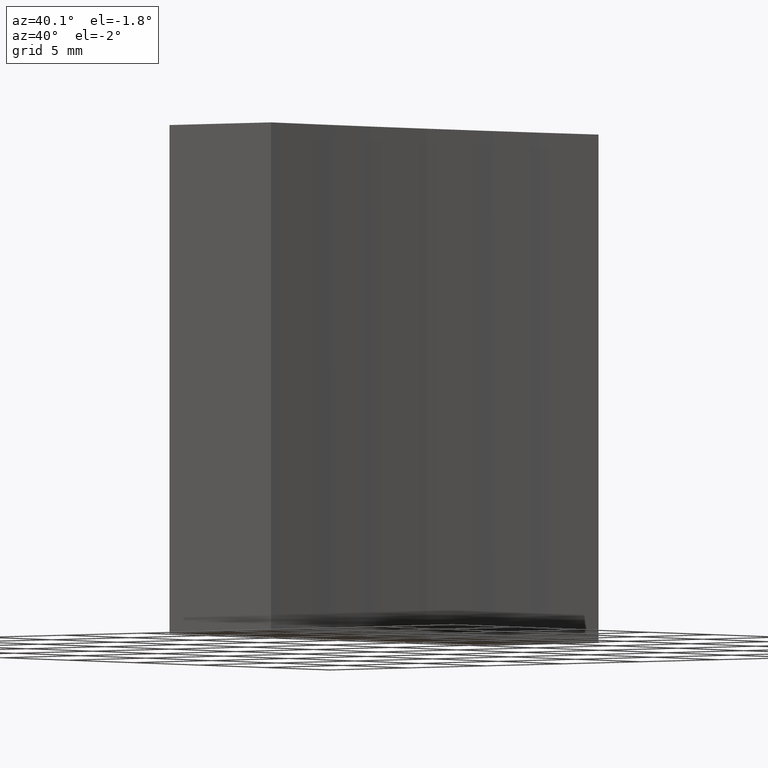
[diagram: clean part render]
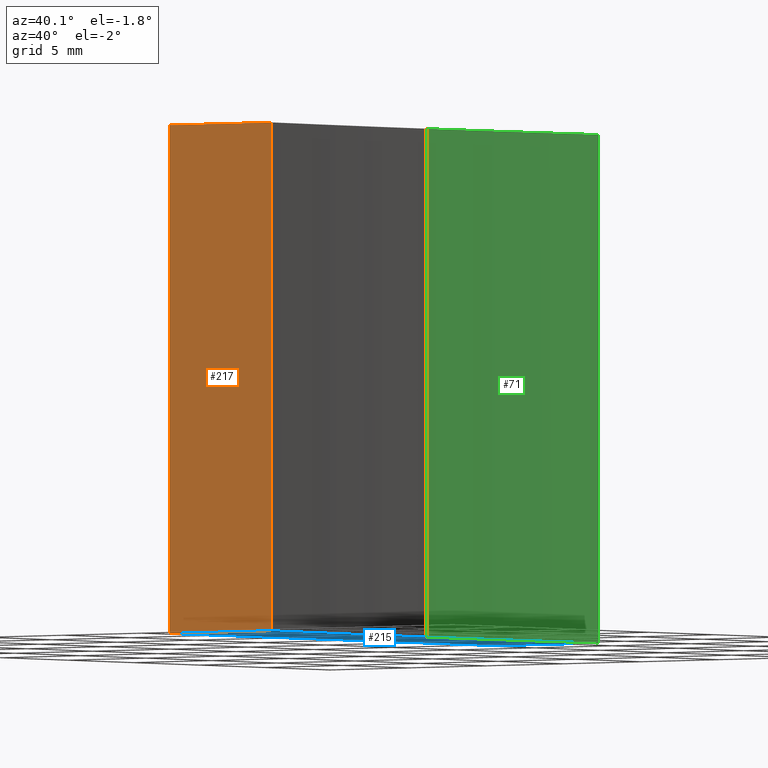
[diagram: same view with three faces highlighted in distinct colors, each labeled with its STEP entity id]
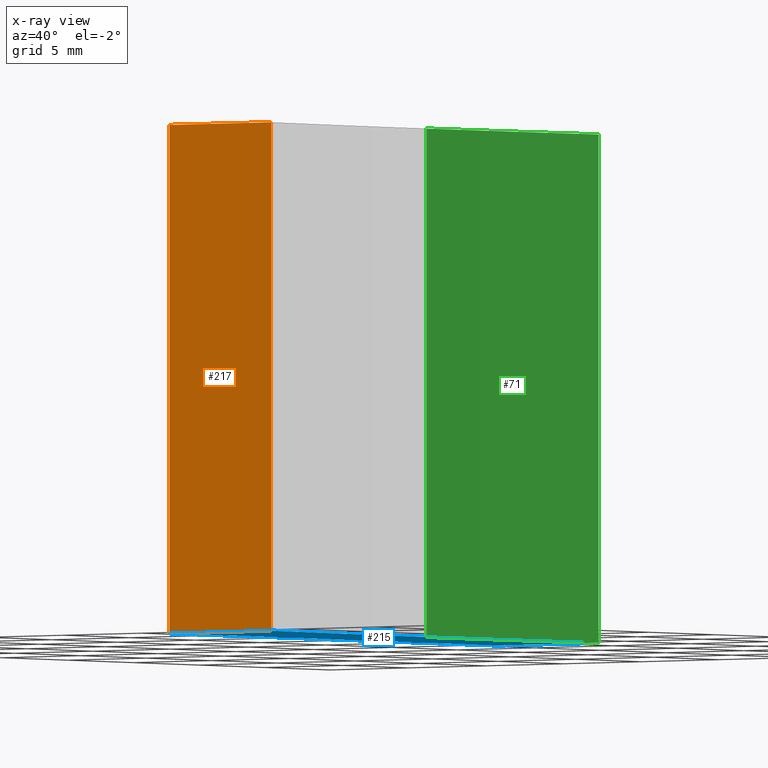
[diagram: x-ray of the same camera — body ghosted, the three highlighted faces saturated]
A machine part, auxiliary view with three faces highlighted in distinct colors.
The next image is the same camera in x-ray (body ghosted, the three faces saturated) — at least one of them is partly hidden behind the body in this view.
Their STEP definitions:

[orange] entity #217 — the highlighted planar face has unit normal (0, 1, -0).
#5 = ORIENTED_EDGE ( 'NONE', *, *, #155, .F. ) ;
#10 = CARTESIAN_POINT ( 'NONE',  ( 291.2288763425366400, 54.35792926776707600, 25.00000000000000000 ) ) ;
#21 = EDGE_LOOP ( 'NONE', ( #79, #223, #5, #236 ) ) ;
#22 = LINE ( 'NONE', #52, #170 ) ;
#27 = DIRECTION ( 'NONE',  ( 0.0000000000000000000, 1.000000000000000000, -0.0000000000000000000 ) ) ;
#39 = VECTOR ( 'NONE', #229, 1000.000000000000000 ) ;
#52 = CARTESIAN_POINT ( 'NONE',  ( 291.2288763425366400, 54.35792926776709800, 25.00000000000000000 ) ) ;
#54 = LINE ( 'NONE', #95, #78 ) ;
#68 = DIRECTION ( 'NONE',  ( 1.000000000000000000, -0.0000000000000000000, -0.0000000000000000000 ) ) ;
#78 = VECTOR ( 'NONE', #159, 1000.000000000000000 ) ;
#79 = ORIENTED_EDGE ( 'NONE', *, *, #117, .T. ) ;
#86 = VERTEX_POINT ( 'NONE', #237 ) ;
#87 = CARTESIAN_POINT ( 'NONE',  ( 291.2288763425366400, 54.35792926776709800, 0.0000000000000000000 ) ) ;
#95 = CARTESIAN_POINT ( 'NONE',  ( 291.2288763425366400, 54.35792926776707600, 0.0000000000000000000 ) ) ;
#99 = CARTESIAN_POINT ( 'NONE',  ( 291.2288763425366400, 54.35792926776707600, 25.00000000000000000 ) ) ;
#106 = VERTEX_POINT ( 'NONE', #87 ) ;
#107 = EDGE_CURVE ( 'NONE', #185, #106, #22, .T. ) ;
#110 = VERTEX_POINT ( 'NONE', #218 ) ;
#115 = PLANE ( 'NONE',  #151 ) ;
#117 = EDGE_CURVE ( 'NONE', #86, #106, #54, .T. ) ;
#121 = VECTOR ( 'NONE', #68, 1000.000000000000000 ) ;
#124 = DIRECTION ( 'NONE',  ( -0.0000000000000000000, -0.0000000000000000000, -1.000000000000000000 ) ) ;
#140 = CARTESIAN_POINT ( 'NONE',  ( 291.2288763425366400, 54.35792926776709800, 25.00000000000000000 ) ) ;
#148 = LINE ( 'NONE', #176, #39 ) ;
#151 = AXIS2_PLACEMENT_3D ( 'NONE', #10, #27, #175 ) ;
#155 = EDGE_CURVE ( 'NONE', #110, #185, #187, .T. ) ;
#159 = DIRECTION ( 'NONE',  ( 1.000000000000000000, -0.0000000000000000000, -0.0000000000000000000 ) ) ;
#170 = VECTOR ( 'NONE', #124, 1000.000000000000000 ) ;
#175 = DIRECTION ( 'NONE',  ( 0.0000000000000000000, 0.0000000000000000000, 1.000000000000000000 ) ) ;
#176 = CARTESIAN_POINT ( 'NONE',  ( 284.7071356312820900, 54.35792926776707600, 25.00000000000000000 ) ) ;
#185 = VERTEX_POINT ( 'NONE', #140 ) ;
#187 = LINE ( 'NONE', #99, #121 ) ;
#199 = FACE_OUTER_BOUND ( 'NONE', #21, .T. ) ;
#217 = ADVANCED_FACE ( 'NONE', ( #199 ), #115, .F. ) ;
#218 = CARTESIAN_POINT ( 'NONE',  ( 284.7071356312820900, 54.35792926776707600, 25.00000000000000000 ) ) ;
#223 = ORIENTED_EDGE ( 'NONE', *, *, #107, .F. ) ;
#225 = EDGE_CURVE ( 'NONE', #110, #86, #148, .T. ) ;
#229 = DIRECTION ( 'NONE',  ( -0.0000000000000000000, -0.0000000000000000000, -1.000000000000000000 ) ) ;
#236 = ORIENTED_EDGE ( 'NONE', *, *, #225, .T. ) ;
#237 = CARTESIAN_POINT ( 'NONE',  ( 284.7071356312820900, 54.35792926776707600, 0.0000000000000000000 ) ) ;

[blue] entity #215 — the highlighted planar face has unit normal (0, 0, 1).
#7 = VERTEX_POINT ( 'NONE', #235 ) ;
#9 = FACE_OUTER_BOUND ( 'NONE', #13, .T. ) ;
#13 = EDGE_LOOP ( 'NONE', ( #113, #224, #76, #43, #80 ) ) ;
#14 = CARTESIAN_POINT ( 'NONE',  ( 284.7071356312820900, 66.85792926776707600, 0.0000000000000000000 ) ) ;
#28 = CARTESIAN_POINT ( 'NONE',  ( 440.7071356313041400, 66.85792926776707600, 0.0000000000000000000 ) ) ;
#43 = ORIENTED_EDGE ( 'NONE', *, *, #88, .F. ) ;
#47 = DIRECTION ( 'NONE',  ( -0.0000000000000000000, -0.0000000000000000000, -1.000000000000000000 ) ) ;
#54 = LINE ( 'NONE', #95, #78 ) ;
#55 = EDGE_CURVE ( 'NONE', #106, #7, #73, .T. ) ;
#59 = VECTOR ( 'NONE', #191, 1000.000000000000000 ) ;
#73 = CIRCLE ( 'NONE', #205, 150.0000000000000300 ) ;
#76 = ORIENTED_EDGE ( 'NONE', *, *, #91, .F. ) ;
#78 = VECTOR ( 'NONE', #159, 1000.000000000000000 ) ;
#80 = ORIENTED_EDGE ( 'NONE', *, *, #55, .F. ) ;
#81 = CARTESIAN_POINT ( 'NONE',  ( 440.7071356313041400, 66.85792926776707600, 0.0000000000000000000 ) ) ;
#83 = CARTESIAN_POINT ( 'NONE',  ( 284.7071356312820900, 79.35792926776707600, 0.0000000000000000000 ) ) ;
#85 = CIRCLE ( 'NONE', #211, 150.0000000000000300 ) ;
#86 = VERTEX_POINT ( 'NONE', #237 ) ;
#87 = CARTESIAN_POINT ( 'NONE',  ( 291.2288763425366400, 54.35792926776709800, 0.0000000000000000000 ) ) ;
#88 = EDGE_CURVE ( 'NONE', #7, #172, #85, .T. ) ;
#90 = LINE ( 'NONE', #141, #59 ) ;
#91 = EDGE_CURVE ( 'NONE', #172, #186, #90, .T. ) ;
#93 = AXIS2_PLACEMENT_3D ( 'NONE', #81, #114, #94 ) ;
#94 = DIRECTION ( 'NONE',  ( 1.000000000000000000, 0.0000000000000000000, -0.0000000000000000000 ) ) ;
#95 = CARTESIAN_POINT ( 'NONE',  ( 291.2288763425366400, 54.35792926776707600, 0.0000000000000000000 ) ) ;
#96 = CARTESIAN_POINT ( 'NONE',  ( 440.7071356313041400, 66.85792926776707600, 0.0000000000000000000 ) ) ;
#100 = DIRECTION ( 'NONE',  ( 1.000000000000000000, 0.0000000000000000000, 0.0000000000000000000 ) ) ;
#104 = VECTOR ( 'NONE', #190, 1000.000000000000000 ) ;
#106 = VERTEX_POINT ( 'NONE', #87 ) ;
#113 = ORIENTED_EDGE ( 'NONE', *, *, #117, .F. ) ;
#114 = DIRECTION ( 'NONE',  ( 0.0000000000000000000, 0.0000000000000000000, 1.000000000000000000 ) ) ;
#117 = EDGE_CURVE ( 'NONE', #86, #106, #54, .T. ) ;
#119 = DIRECTION ( 'NONE',  ( 1.000000000000000000, 0.0000000000000000000, 0.0000000000000000000 ) ) ;
#138 = DIRECTION ( 'NONE',  ( -0.0000000000000000000, -0.0000000000000000000, -1.000000000000000000 ) ) ;
#141 = CARTESIAN_POINT ( 'NONE',  ( 284.7071356312820900, 79.35792926776707600, 0.0000000000000000000 ) ) ;
#150 = LINE ( 'NONE', #14, #104 ) ;
#159 = DIRECTION ( 'NONE',  ( 1.000000000000000000, -0.0000000000000000000, -0.0000000000000000000 ) ) ;
#167 = EDGE_CURVE ( 'NONE', #186, #86, #150, .T. ) ;
#172 = VERTEX_POINT ( 'NONE', #214 ) ;
#186 = VERTEX_POINT ( 'NONE', #83 ) ;
#189 = PLANE ( 'NONE',  #93 ) ;
#190 = DIRECTION ( 'NONE',  ( -0.0000000000000000000, -1.000000000000000000, -0.0000000000000000000 ) ) ;
#191 = DIRECTION ( 'NONE',  ( -1.000000000000000000, -0.0000000000000000000, -0.0000000000000000000 ) ) ;
#205 = AXIS2_PLACEMENT_3D ( 'NONE', #28, #47, #119 ) ;
#211 = AXIS2_PLACEMENT_3D ( 'NONE', #96, #138, #100 ) ;
#214 = CARTESIAN_POINT ( 'NONE',  ( 291.2288763425366400, 79.35792926776707600, 0.0000000000000000000 ) ) ;
#215 = ADVANCED_FACE ( 'NONE', ( #9 ), #189, .F. ) ;
#224 = ORIENTED_EDGE ( 'NONE', *, *, #167, .F. ) ;
#235 = CARTESIAN_POINT ( 'NONE',  ( 290.7071356313041400, 66.85792926776707600, 0.0000000000000000000 ) ) ;
#237 = CARTESIAN_POINT ( 'NONE',  ( 284.7071356312820900, 54.35792926776707600, 0.0000000000000000000 ) ) ;

[green] entity #71 — the highlighted cylindrical surface (partial cylindrical patch) has radius 150 mm, axis along (-0, -0, -1).
#3 = ORIENTED_EDGE ( 'NONE', *, *, #131, .F. ) ;
#7 = VERTEX_POINT ( 'NONE', #235 ) ;
#19 = EDGE_LOOP ( 'NONE', ( #3, #38, #82, #209 ) ) ;
#20 = EDGE_CURVE ( 'NONE', #233, #172, #25, .T. ) ;
#23 = VECTOR ( 'NONE', #143, 1000.000000000000000 ) ;
#25 = LINE ( 'NONE', #230, #23 ) ;
#29 = DIRECTION ( 'NONE',  ( 1.000000000000000000, 0.0000000000000000000, 0.0000000000000000000 ) ) ;
#32 = DIRECTION ( 'NONE',  ( -1.000000000000000000, 0.0000000000000000000, 0.0000000000000000000 ) ) ;
#38 = ORIENTED_EDGE ( 'NONE', *, *, #162, .T. ) ;
#64 = LINE ( 'NONE', #84, #202 ) ;
#67 = DIRECTION ( 'NONE',  ( -0.0000000000000000000, -0.0000000000000000000, -1.000000000000000000 ) ) ;
#71 = ADVANCED_FACE ( 'NONE', ( #112 ), #108, .F. ) ;
#82 = ORIENTED_EDGE ( 'NONE', *, *, #88, .T. ) ;
#84 = CARTESIAN_POINT ( 'NONE',  ( 290.7071356313041400, 66.85792926776707600, 25.00000000000000000 ) ) ;
#85 = CIRCLE ( 'NONE', #211, 150.0000000000000300 ) ;
#88 = EDGE_CURVE ( 'NONE', #7, #172, #85, .T. ) ;
#96 = CARTESIAN_POINT ( 'NONE',  ( 440.7071356313041400, 66.85792926776707600, 0.0000000000000000000 ) ) ;
#100 = DIRECTION ( 'NONE',  ( 1.000000000000000000, 0.0000000000000000000, 0.0000000000000000000 ) ) ;
#108 = CYLINDRICAL_SURFACE ( 'NONE', #135, 150.0000000000000300 ) ;
#112 = FACE_OUTER_BOUND ( 'NONE', #19, .T. ) ;
#131 = EDGE_CURVE ( 'NONE', #222, #233, #221, .T. ) ;
#134 = CARTESIAN_POINT ( 'NONE',  ( 440.7071356313041400, 66.85792926776707600, 25.00000000000000000 ) ) ;
#135 = AXIS2_PLACEMENT_3D ( 'NONE', #216, #139, #32 ) ;
#136 = CARTESIAN_POINT ( 'NONE',  ( 290.7071356313041400, 66.85792926776707600, 25.00000000000000000 ) ) ;
#137 = CARTESIAN_POINT ( 'NONE',  ( 291.2288763425366400, 79.35792926776707600, 25.00000000000000000 ) ) ;
#138 = DIRECTION ( 'NONE',  ( -0.0000000000000000000, -0.0000000000000000000, -1.000000000000000000 ) ) ;
#139 = DIRECTION ( 'NONE',  ( -0.0000000000000000000, -0.0000000000000000000, -1.000000000000000000 ) ) ;
#143 = DIRECTION ( 'NONE',  ( -0.0000000000000000000, -0.0000000000000000000, -1.000000000000000000 ) ) ;
#162 = EDGE_CURVE ( 'NONE', #222, #7, #64, .T. ) ;
#172 = VERTEX_POINT ( 'NONE', #214 ) ;
#184 = AXIS2_PLACEMENT_3D ( 'NONE', #134, #232, #29 ) ;
#202 = VECTOR ( 'NONE', #67, 1000.000000000000000 ) ;
#209 = ORIENTED_EDGE ( 'NONE', *, *, #20, .F. ) ;
#211 = AXIS2_PLACEMENT_3D ( 'NONE', #96, #138, #100 ) ;
#214 = CARTESIAN_POINT ( 'NONE',  ( 291.2288763425366400, 79.35792926776707600, 0.0000000000000000000 ) ) ;
#216 = CARTESIAN_POINT ( 'NONE',  ( 440.7071356313041400, 66.85792926776707600, 25.00000000000000000 ) ) ;
#221 = CIRCLE ( 'NONE', #184, 150.0000000000000300 ) ;
#222 = VERTEX_POINT ( 'NONE', #136 ) ;
#230 = CARTESIAN_POINT ( 'NONE',  ( 291.2288763425366400, 79.35792926776707600, 25.00000000000000000 ) ) ;
#232 = DIRECTION ( 'NONE',  ( -0.0000000000000000000, -0.0000000000000000000, -1.000000000000000000 ) ) ;
#233 = VERTEX_POINT ( 'NONE', #137 ) ;
#235 = CARTESIAN_POINT ( 'NONE',  ( 290.7071356313041400, 66.85792926776707600, 0.0000000000000000000 ) ) ;